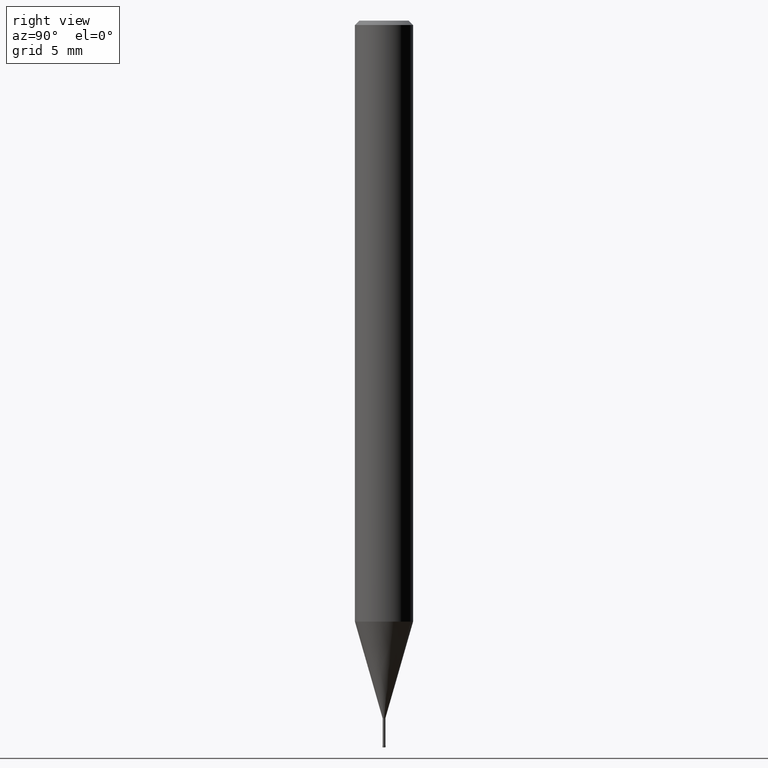
[diagram: clean part render]
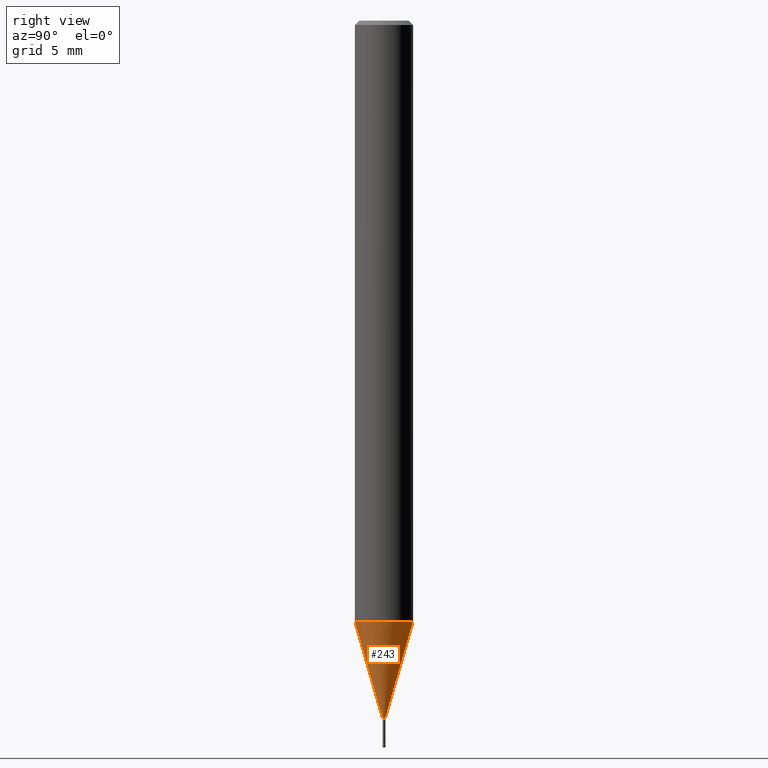
[diagram: same view with one face highlighted and labeled with its STEP entity id]
A machine part, right view. The second image highlights one B-rep face of the part: STEP entity #243.
In plain terms, the highlighted conical surface has half-angle 16.001 deg.
Its self-contained STEP definition (entity closure, byte-faithful):
#141=EDGE_CURVE('',#217,#161,#376,.T.);
#161=VERTEX_POINT('',#398);
#205=VERTEX_POINT('',#450);
#217=VERTEX_POINT('',#463);
#219=VERTEX_POINT('',#465);
#221=EDGE_CURVE('',#217,#205,#467,.T.);
#243=ADVANCED_FACE('',(#489),#490,.T.);
#295=EDGE_CURVE('',#205,#219,#551,.T.);
#317=EDGE_CURVE('',#219,#161,#578,.T.);
#376=CIRCLE('',#634,1.99995);
#398=CARTESIAN_POINT('',(2.44915147732706E-016,-1.99995,-41.338));
#450=CARTESIAN_POINT('',(0.0,0.09245,-47.99));
#463=CARTESIAN_POINT('',(0.0,1.99995,-41.338));
#465=CARTESIAN_POINT('',(1.13214857410879E-017,-0.09245,-47.99));
#467=LINE('',#744,#745);
#489=FACE_OUTER_BOUND('',#773,.T.);
#490=CONICAL_SURFACE('',#774,1.0462,0.279262361421134);
#551=CIRCLE('',#851,0.09245);
#578=LINE('',#884,#885);
#634=AXIS2_PLACEMENT_3D('',#945,#946,#947);
#744=CARTESIAN_POINT('',(-1.28118316736897E-016,1.0462,-44.664));
#745=VECTOR('',#1064,1.0);
#773=EDGE_LOOP('',(#1077,#1078,#1079,#1080));
#774=AXIS2_PLACEMENT_3D('',#1081,#1082,#1083);
#851=AXIS2_PLACEMENT_3D('',#1164,#1165,#1166);
#884=CARTESIAN_POINT('',(1.28118316736897E-016,-1.0462,-44.664));
#885=VECTOR('',#1209,1.0);
#945=CARTESIAN_POINT('',(0.0,0.0,-41.338));
#946=DIRECTION('',(0.0,0.0,-1.0));
#947=DIRECTION('',(0.0,1.0,0.0));
#1064=DIRECTION('',(3.37558653544073E-017,-0.275646661876649,-0.961259027419904));
#1077=ORIENTED_EDGE('',*,*,#221,.F.);
#1078=ORIENTED_EDGE('',*,*,#141,.T.);
#1079=ORIENTED_EDGE('',*,*,#317,.F.);
#1080=ORIENTED_EDGE('',*,*,#295,.F.);
#1081=CARTESIAN_POINT('',(0.0,0.0,-44.664));
#1082=DIRECTION('',(-0.0,-0.0,1.0));
#1083=DIRECTION('',(0.0,1.0,0.0));
#1164=CARTESIAN_POINT('',(0.0,0.0,-47.99));
#1165=DIRECTION('',(0.0,0.0,-1.0));
#1166=DIRECTION('',(0.0,1.0,0.0));
#1209=DIRECTION('',(3.37558653544073E-017,-0.275646661876649,0.961259027419904));